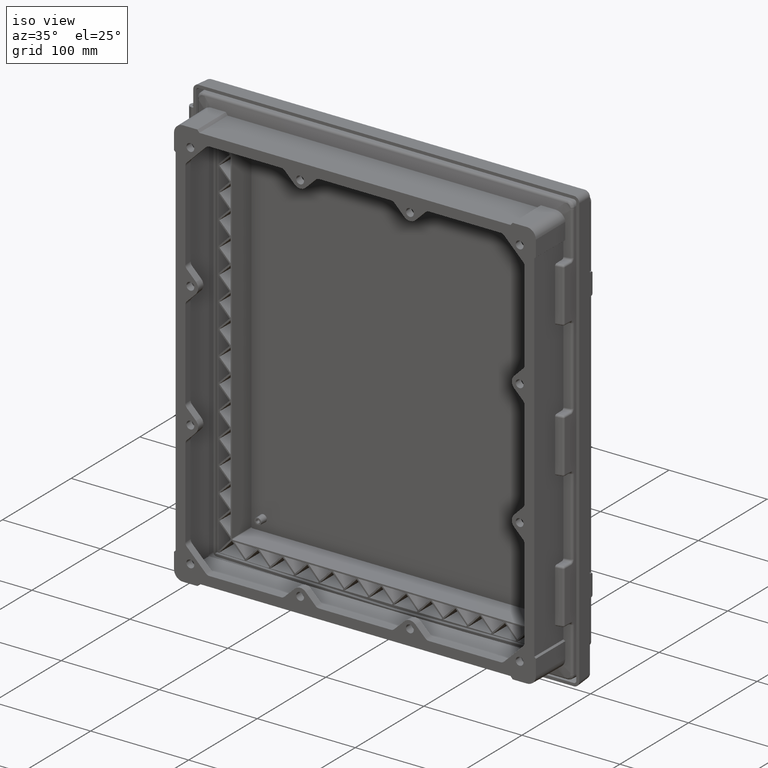
[diagram: clean part render]
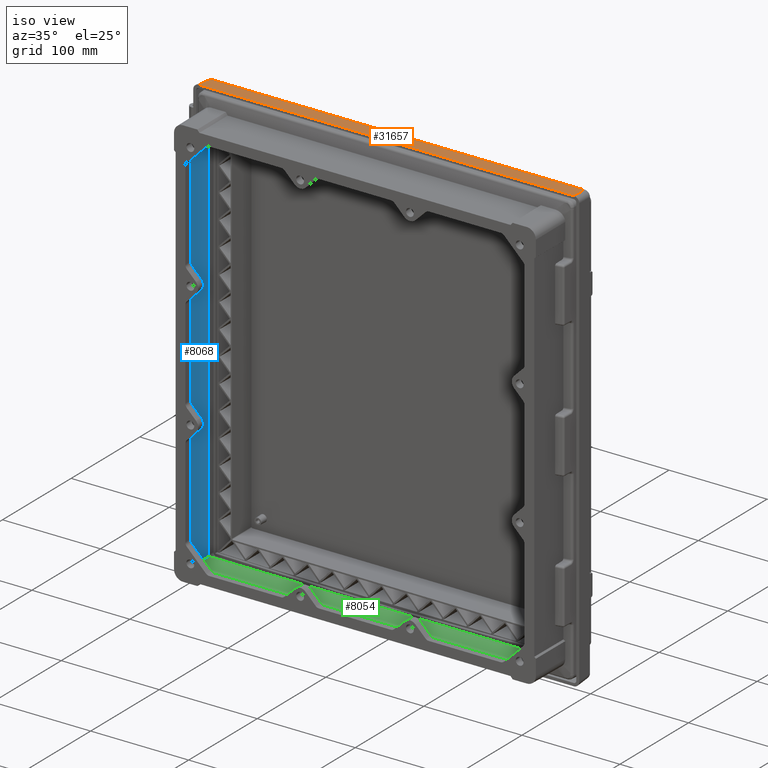
[diagram: same view with three faces highlighted in distinct colors, each labeled with its STEP entity id]
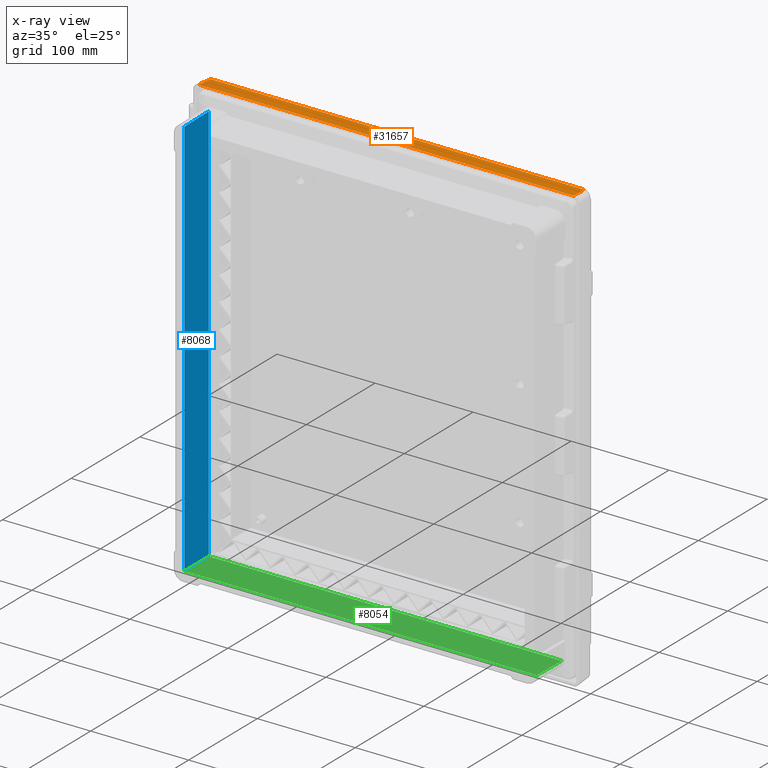
[diagram: x-ray of the same camera — body ghosted, the three highlighted faces saturated]
A machine part, iso view with three faces highlighted in distinct colors.
The next image is the same camera in x-ray (body ghosted, the three faces saturated) — at least one of them is partly hidden behind the body in this view.
Their STEP definitions:

[orange] entity #31657 — the highlighted planar face has unit normal (0, 0.0523, 0.9986).
#17100=DIRECTION('',(1.E0,0.E0,0.E0));
#17101=VECTOR('',#17100,3.811473017120E2);
#17102=CARTESIAN_POINT('',(-1.905736508560E2,8.279050103786E0,
2.253161133695E2));
#17103=LINE('',#17102,#17101);
#17139=CARTESIAN_POINT('',(-1.905736508560E2,8.279050103786E0,
2.253161133695E2));
#17150=CARTESIAN_POINT('',(-1.914267997931E2,-8.E0,2.261692622343E2));
#17157=DIRECTION('',(-5.226443210722E-2,9.972646884033E-1,-5.226442767672E-2));
#17158=VECTOR('',#17157,1.632370051109E1);
#17159=CARTESIAN_POINT('',(1.914267997931E2,-8.E0,2.261692622343E2));
#17160=LINE('',#17159,#17158);
#17161=DIRECTION('',(1.E0,0.E0,0.E0));
#17162=VECTOR('',#17161,3.828535995862E2);
#17163=CARTESIAN_POINT('',(-1.914267997931E2,-8.E0,2.261692622343E2));
#17164=LINE('',#17163,#17162);
#17165=DIRECTION('',(-5.226443210722E-2,-9.972646884033E-1,5.226442767672E-2));
#17166=VECTOR('',#17165,1.632370051109E1);
#17167=CARTESIAN_POINT('',(-1.905736508560E2,8.279050103786E0,
2.253161133695E2));
#17168=LINE('',#17167,#17166);
#28303=VERTEX_POINT('',#17139);
#28306=CARTESIAN_POINT('',(1.905736508560E2,8.279050103786E0,2.253161133695E2));
#28307=VERTEX_POINT('',#28306);
#28501=VERTEX_POINT('',#17150);
#28502=CARTESIAN_POINT('',(1.914267997931E2,-8.E0,2.261692622343E2));
#28503=VERTEX_POINT('',#28502);
#31645=CARTESIAN_POINT('',(1.965E2,0.E0,2.2575E2));
#31646=DIRECTION('',(0.E0,5.233595624294E-2,9.986295347546E-1));
#31647=DIRECTION('',(0.E0,-9.986295347546E-1,5.233595624294E-2));
#31648=AXIS2_PLACEMENT_3D('',#31645,#31646,#31647);
#31649=PLANE('',#31648);
#31650=ORIENTED_EDGE('',*,*,#31545,.T.);
#31652=ORIENTED_EDGE('',*,*,#31651,.F.);
#31653=ORIENTED_EDGE('',*,*,#30781,.F.);
#31654=ORIENTED_EDGE('',*,*,#31637,.F.);
#31655=EDGE_LOOP('',(#31650,#31652,#31653,#31654));
#31656=FACE_OUTER_BOUND('',#31655,.F.);
#31657=ADVANCED_FACE('',(#31656),#31649,.T.);
#30781=EDGE_CURVE('',#28501,#28503,#17164,.T.);
#31545=EDGE_CURVE('',#28303,#28307,#17103,.T.);
#31637=EDGE_CURVE('',#28303,#28501,#17168,.T.);
#31651=EDGE_CURVE('',#28503,#28307,#17160,.T.);

[blue] entity #8068 — the highlighted planar face has unit normal (-1, -0.0087, 0).
#1216=DIRECTION('',(0.E0,0.E0,1.E0));
#1217=VECTOR('',#1216,4.097376290293E2);
#1218=CARTESIAN_POINT('',(-1.798688145146E2,-4.9395E1,-2.048688145146E2));
#1219=LINE('',#1218,#1217);
#1220=DIRECTION('',(8.726203243944E-3,-9.999238504776E-1,-8.726203243944E-3));
#1221=VECTOR('',#1220,3.613422310538E1);
#1222=CARTESIAN_POINT('',(-1.801841290895E2,-1.326352849845E1,
2.051841290895E2));
#1223=LINE('',#1222,#1221);
#1224=DIRECTION('',(0.E0,0.E0,1.E0));
#1225=VECTOR('',#1224,4.103682581790E2);
#1226=CARTESIAN_POINT('',(-1.801841290895E2,-1.326352849845E1,
-2.051841290895E2));
#1227=LINE('',#1226,#1225);
#1228=DIRECTION('',(8.726203243944E-3,-9.999238504776E-1,8.726203243944E-3));
#1229=VECTOR('',#1228,3.613422310538E1);
#1230=CARTESIAN_POINT('',(-1.801841290895E2,-1.326352849845E1,
-2.051841290895E2));
#1231=LINE('',#1230,#1229);
#5854=CARTESIAN_POINT('',(-1.801841290895E2,-1.326352849845E1,
2.051841290895E2));
#5856=VERTEX_POINT('',#5854);
#5857=CARTESIAN_POINT('',(-1.801841290895E2,-1.326352849845E1,
-2.051841290895E2));
#5858=VERTEX_POINT('',#5857);
#5861=CARTESIAN_POINT('',(-1.798688145146E2,-4.9395E1,-2.048688145146E2));
#5863=VERTEX_POINT('',#5861);
#5865=CARTESIAN_POINT('',(-1.798688145146E2,-4.9395E1,2.048688145146E2));
#5866=VERTEX_POINT('',#5865);
#8055=CARTESIAN_POINT('',(-1.803001218462E2,2.792491359480E-2,-2.085E2));
#8056=DIRECTION('',(-9.999619230642E-1,-8.726535498374E-3,0.E0));
#8057=DIRECTION('',(8.726535498374E-3,-9.999619230642E-1,0.E0));
#8058=AXIS2_PLACEMENT_3D('',#8055,#8056,#8057);
#8059=PLANE('',#8058);
#8060=ORIENTED_EDGE('',*,*,#7834,.T.);
#8062=ORIENTED_EDGE('',*,*,#8061,.F.);
#8064=ORIENTED_EDGE('',*,*,#8063,.F.);
#8065=ORIENTED_EDGE('',*,*,#8046,.T.);
#8066=EDGE_LOOP('',(#8060,#8062,#8064,#8065));
#8067=FACE_OUTER_BOUND('',#8066,.F.);
#8068=ADVANCED_FACE('',(#8067),#8059,.F.);
#7834=EDGE_CURVE('',#5863,#5866,#1219,.T.);
#8046=EDGE_CURVE('',#5858,#5863,#1231,.T.);
#8061=EDGE_CURVE('',#5856,#5866,#1223,.T.);
#8063=EDGE_CURVE('',#5858,#5856,#1227,.T.);

[green] entity #8054 — the highlighted planar face has unit normal (0, -0.0087, -1).
#1208=DIRECTION('',(1.E0,0.E0,0.E0));
#1209=VECTOR('',#1208,3.597376290293E2);
#1210=CARTESIAN_POINT('',(-1.798688145146E2,-4.9395E1,-2.048688145146E2));
#1211=LINE('',#1210,#1209);
#1212=DIRECTION('',(1.E0,0.E0,0.E0));
#1213=VECTOR('',#1212,3.603682581790E2);
#1214=CARTESIAN_POINT('',(-1.801841290895E2,-1.326352849845E1,
-2.051841290895E2));
#1215=LINE('',#1214,#1213);
#1228=DIRECTION('',(8.726203243944E-3,-9.999238504776E-1,8.726203243944E-3));
#1229=VECTOR('',#1228,3.613422310538E1);
#1230=CARTESIAN_POINT('',(-1.801841290895E2,-1.326352849845E1,
-2.051841290895E2));
#1231=LINE('',#1230,#1229);
#1244=DIRECTION('',(8.726203243945E-3,9.999238504776E-1,-8.726203243944E-3));
#1245=VECTOR('',#1244,3.613422310538E1);
#1246=CARTESIAN_POINT('',(1.798688145146E2,-4.9395E1,-2.048688145146E2));
#1247=LINE('',#1246,#1245);
#5857=CARTESIAN_POINT('',(-1.801841290895E2,-1.326352849845E1,
-2.051841290895E2));
#5858=VERTEX_POINT('',#5857);
#5859=CARTESIAN_POINT('',(1.801841290895E2,-1.326352849845E1,
-2.051841290895E2));
#5860=VERTEX_POINT('',#5859);
#5861=CARTESIAN_POINT('',(-1.798688145146E2,-4.9395E1,-2.048688145146E2));
#5862=CARTESIAN_POINT('',(1.798688145146E2,-4.9395E1,-2.048688145146E2));
#5863=VERTEX_POINT('',#5861);
#5864=VERTEX_POINT('',#5862);
#8040=CARTESIAN_POINT('',(-1.835E2,2.792491359480E-2,-2.053001218462E2));
#8041=DIRECTION('',(0.E0,-8.726535498374E-3,-9.999619230642E-1));
#8042=DIRECTION('',(0.E0,9.999619230642E-1,-8.726535498374E-3));
#8043=AXIS2_PLACEMENT_3D('',#8040,#8041,#8042);
#8044=PLANE('',#8043);
#8045=ORIENTED_EDGE('',*,*,#7828,.F.);
#8047=ORIENTED_EDGE('',*,*,#8046,.F.);
#8049=ORIENTED_EDGE('',*,*,#8048,.T.);
#8051=ORIENTED_EDGE('',*,*,#8050,.F.);
#8052=EDGE_LOOP('',(#8045,#8047,#8049,#8051));
#8053=FACE_OUTER_BOUND('',#8052,.F.);
#8054=ADVANCED_FACE('',(#8053),#8044,.F.);
#7828=EDGE_CURVE('',#5863,#5864,#1211,.T.);
#8046=EDGE_CURVE('',#5858,#5863,#1231,.T.);
#8048=EDGE_CURVE('',#5858,#5860,#1215,.T.);
#8050=EDGE_CURVE('',#5864,#5860,#1247,.T.);